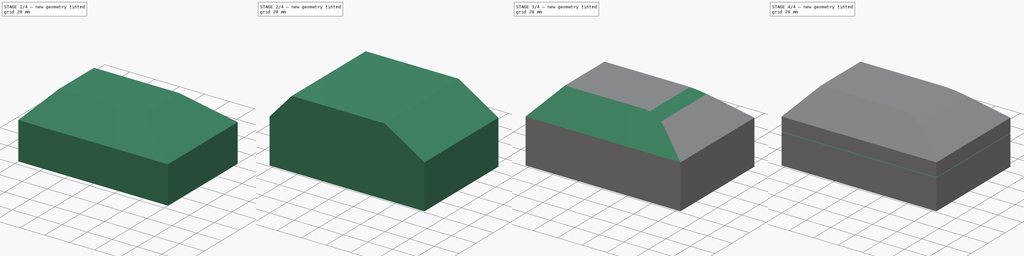
[diagram: build sequence overview — one tinted view per stage of 4, left to right]
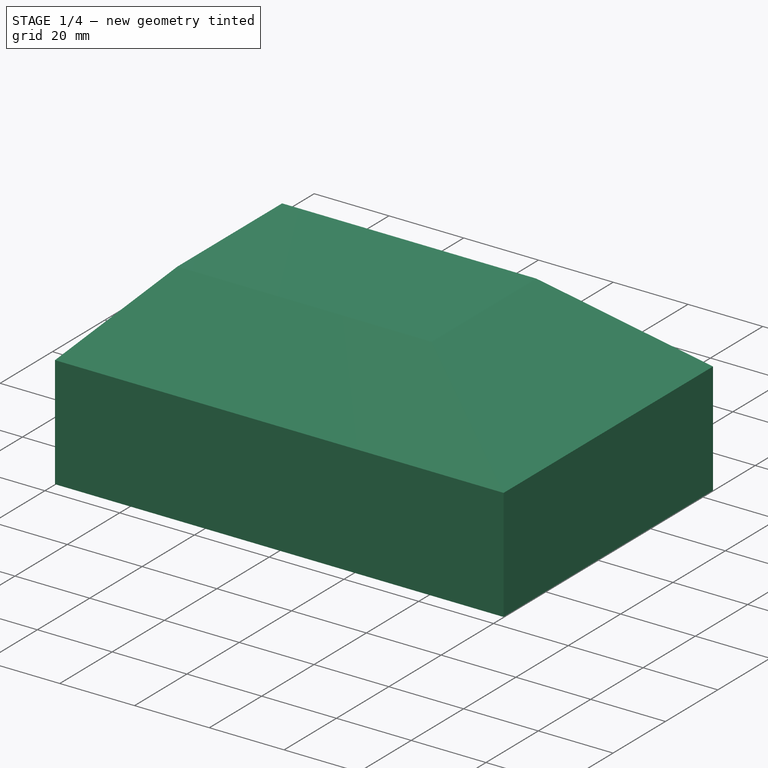
[diagram: stage 1 of 4 — iso view after this stage's code; geometry added in this stage tinted green]
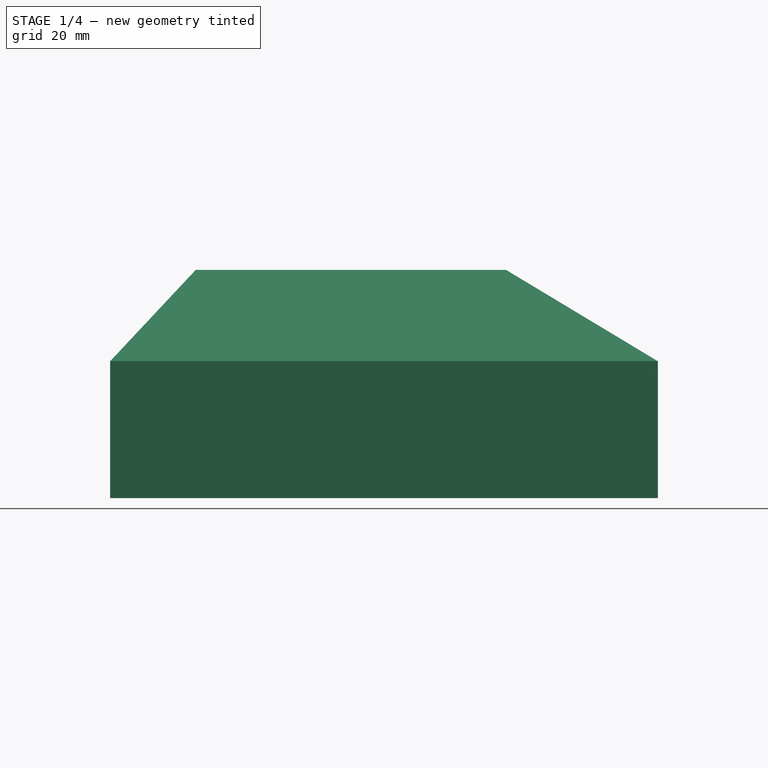
[diagram: stage 1 of 4 — front view after this stage's code; geometry added in this stage tinted green]
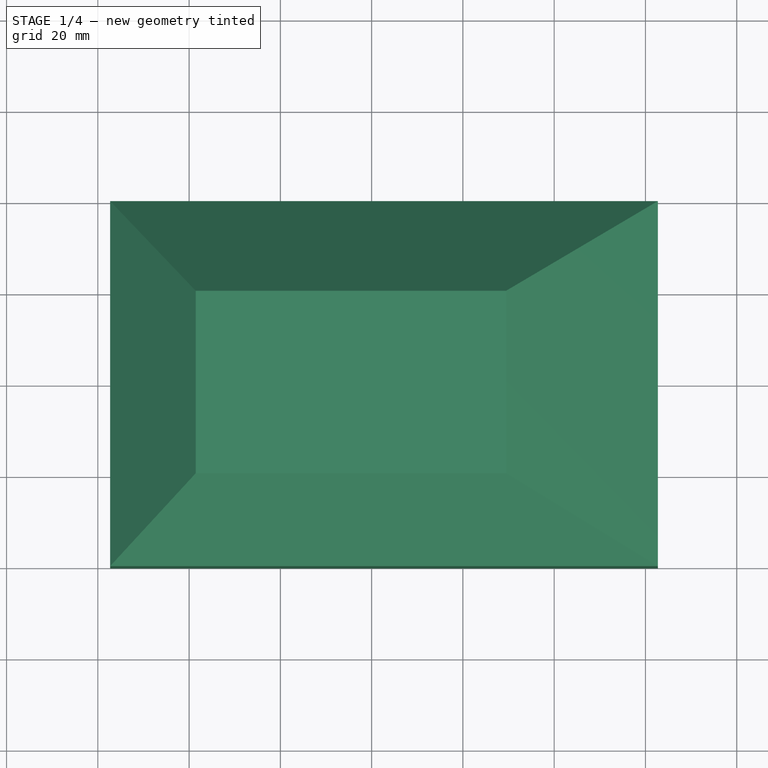
[diagram: stage 1 of 4 — top view after this stage's code; geometry added in this stage tinted green]
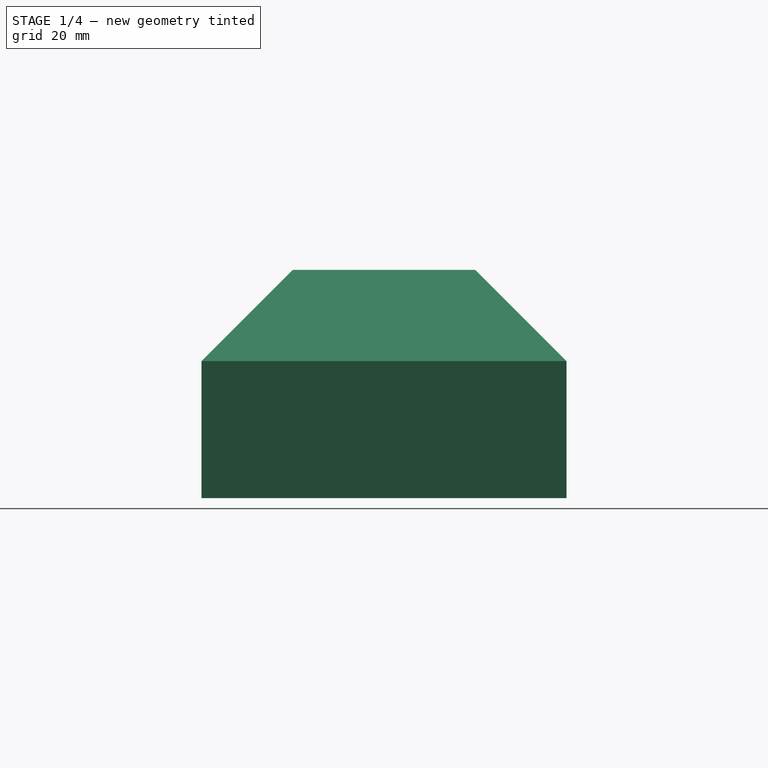
[diagram: stage 1 of 4 — right view after this stage's code; geometry added in this stage tinted green]
FCSTD DOCUMENT  (FreeCAD 0.16R6706 (Git))
Label: raspbox
License: All rights reserved
LicenseURL: http://en.wikipedia.org/wiki/All_rights_reserved
objects: Sketcher::SketchObject×4, PartDesign::Pad×2, PartDesign::Chamfer×2, PartDesign::Fillet×2, PartDesign::Pocket×2, App::MeasureDistance×2, Part::Cut×1
note: 17 computed .brp shape members not serialized (recipe doc carries the construction recipe); baked Part::Feature solids carry a one-line shape summary decoded from their .brp

FEATURE [Sketcher::SketchObject] Sketch001
  Placement = pos=(0,0,-25) rot=(1,0,0;1.5708rad)
  sketch-geometry (6):
    g0: LineSegment StartX=42.7081 StartY=3 StartZ=0 EndX=42.7081 EndY=33 EndZ=0
    g1: LineSegment StartX=42.7081 StartY=33 StartZ=0 EndX=9.46527 EndY=53 EndZ=0
    g2: LineSegment StartX=9.46527 StartY=53 StartZ=0 EndX=-58.5527 EndY=53 EndZ=0
    g3: LineSegment StartX=-58.5527 StartY=53 StartZ=0 EndX=-77.2919 EndY=33 EndZ=0
    g4: LineSegment StartX=-77.2919 StartY=33 StartZ=0 EndX=-77.2919 EndY=3 EndZ=0
    g5: LineSegment StartX=-77.2919 StartY=3 StartZ=0 EndX=42.7081 EndY=3 EndZ=0
  constraints (15):
    c: Vertical(g0)
    c: Coincident(g0,g1)
    c: Coincident(g1,g2)
    c: Horizontal(g2)
    c: Coincident(g2,g3)
    c: Coincident(g3,g4)
    c: Vertical(g4)
    c: Coincident(g4,g5)
    c: Horizontal(g5)
    c: Coincident(g5,g0)
    c: Distance(g5) = 120
    c: Equal(g4,g0)
    c: DistanceY(g0,g0) = 30
    c: DistanceY(g0,g1) = 50
    c: DistanceY(g-1,g0) = 3
FEATURE [PartDesign::Pad] Pad001
  Length = 80
  Length2 = 100
  Midplane = true
  Placement = pos=(0,0,-25) rot=(1,0,0;1.5708rad)
  Sketch = -> Sketch001
  Type = 0
FEATURE [PartDesign::Chamfer] Chamfer001
  Base = -> Pad001 [Edge9,Edge10]
  Placement = pos=(0,0,-25) rot=(1,0,0;1.5708rad)
  Size = 20
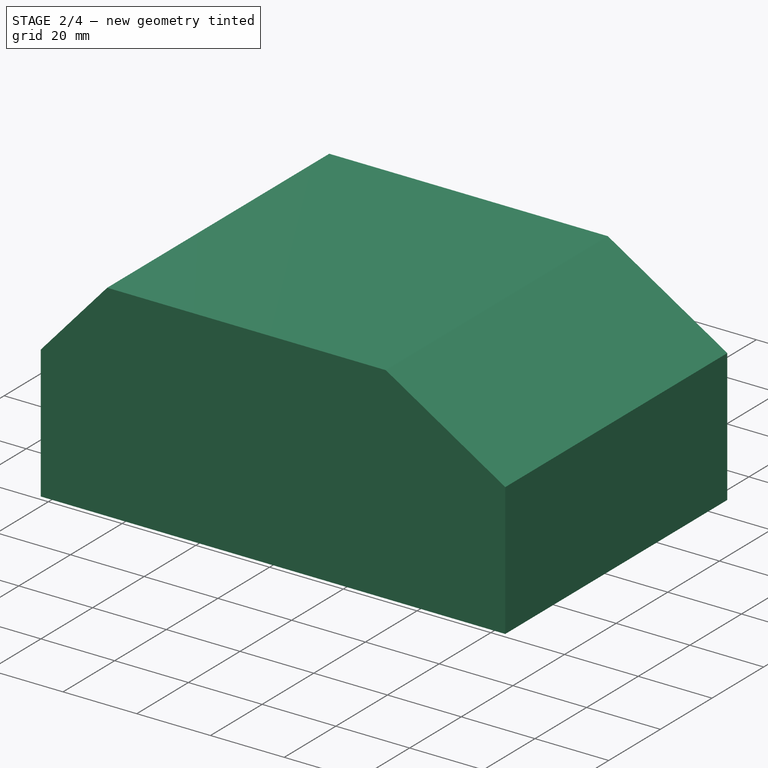
[diagram: stage 2 of 4 — iso view after this stage's code; geometry added in this stage tinted green]
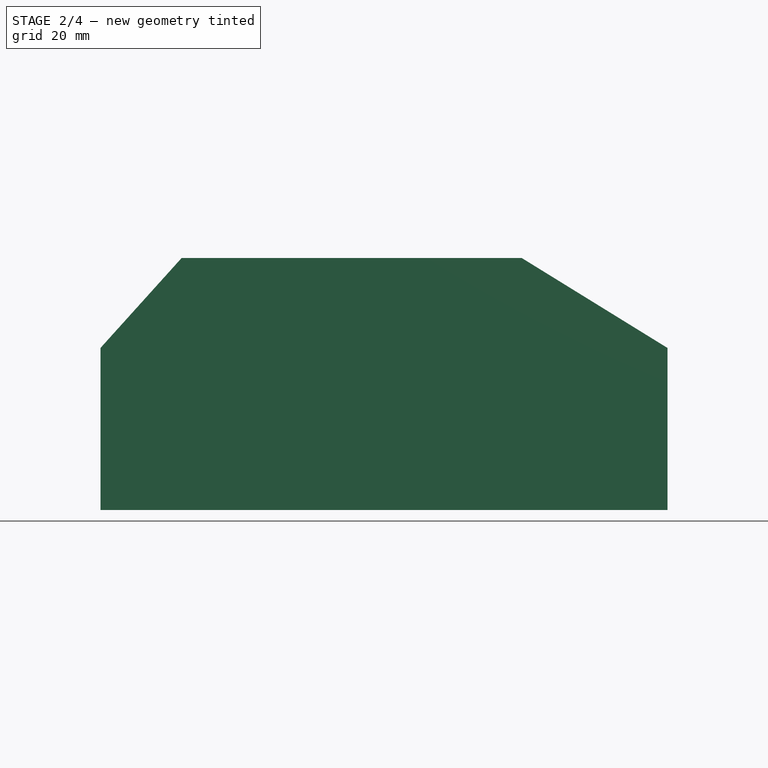
[diagram: stage 2 of 4 — front view after this stage's code; geometry added in this stage tinted green]
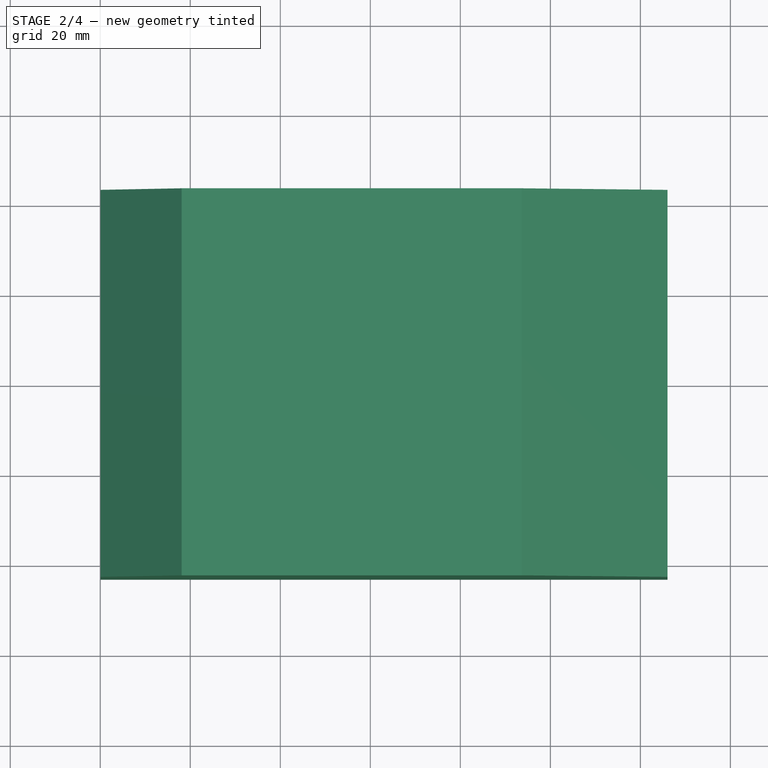
[diagram: stage 2 of 4 — top view after this stage's code; geometry added in this stage tinted green]
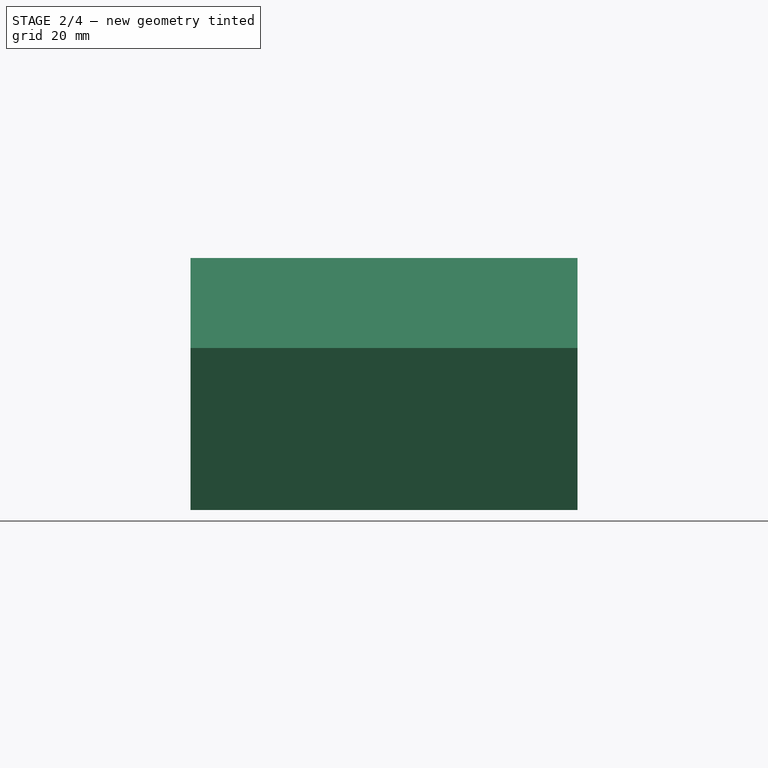
[diagram: stage 2 of 4 — right view after this stage's code; geometry added in this stage tinted green]
FEATURE [Sketcher::SketchObject] Sketch
  Placement = pos=(0,0,-25) rot=(1,0,0;1.5708rad)
  sketch-geometry (6):
    g0: LineSegment StartX=46.0411 StartY=0 StartZ=0 EndX=46.0411 EndY=36 EndZ=0
    g1: LineSegment StartX=46.0411 StartY=36 StartZ=0 EndX=13.6325 EndY=56 EndZ=0
    g2: LineSegment StartX=13.6325 StartY=56 StartZ=0 EndX=-61.9168 EndY=56 EndZ=0
    g3: LineSegment StartX=-61.9168 StartY=56 StartZ=0 EndX=-79.9589 EndY=36 EndZ=0
    g4: LineSegment StartX=-79.9589 StartY=36 StartZ=0 EndX=-79.9589 EndY=0 EndZ=0
    g5: LineSegment StartX=-79.9589 StartY=0 StartZ=0 EndX=46.0411 EndY=0 EndZ=0
  constraints (16):
    c: PointOnObject(g0,g-1)
    c: Vertical(g0)
    c: Coincident(g0,g1)
    c: Coincident(g1,g2)
    c: Horizontal(g2)
    c: Coincident(g2,g3)
    c: Coincident(g3,g4)
    c: PointOnObject(g4,g-1)
    c: Vertical(g4)
    c: Coincident(g4,g5)
    c: Horizontal(g5)
    c: Coincident(g5,g0)
    c: Distance(g5) = 126
    c: Equal(g4,g0)
    c: DistanceY(g0,g1) = 56
    c: DistanceY(g0,g0) = 36
FEATURE [PartDesign::Pad] Pad
  Length = 86
  Length2 = 100
  Midplane = true
  Placement = pos=(0,0,-25) rot=(1,0,0;1.5708rad)
  Sketch = -> Sketch
  Type = 0
FEATURE [PartDesign::Fillet] Fillet001
  Base = -> Chamfer001 [Edge1]
  Placement = pos=(0,0,-25) rot=(1,0,0;1.5708rad)
  Radius = 39
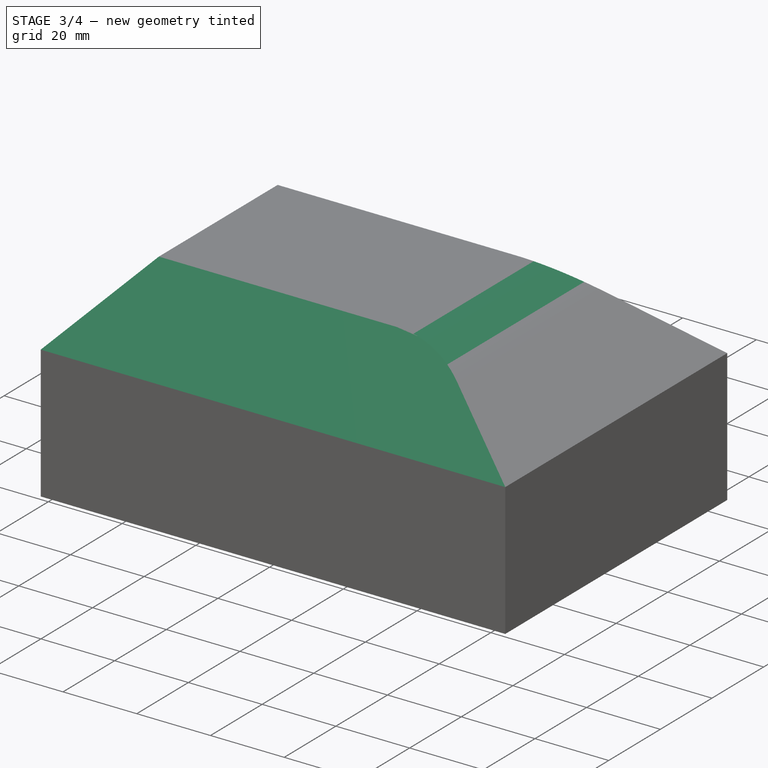
[diagram: stage 3 of 4 — iso view after this stage's code; geometry added in this stage tinted green]
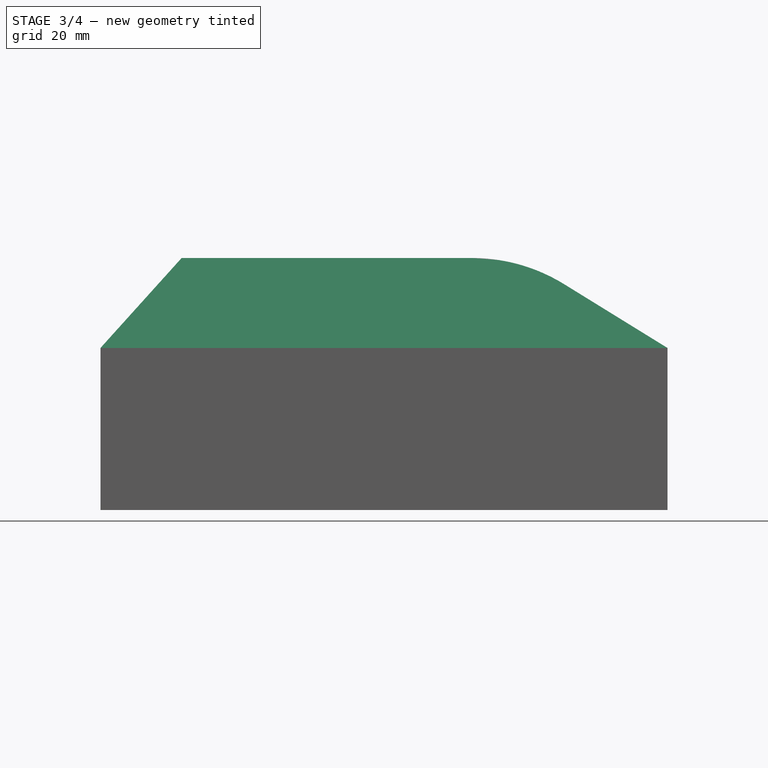
[diagram: stage 3 of 4 — front view after this stage's code; geometry added in this stage tinted green]
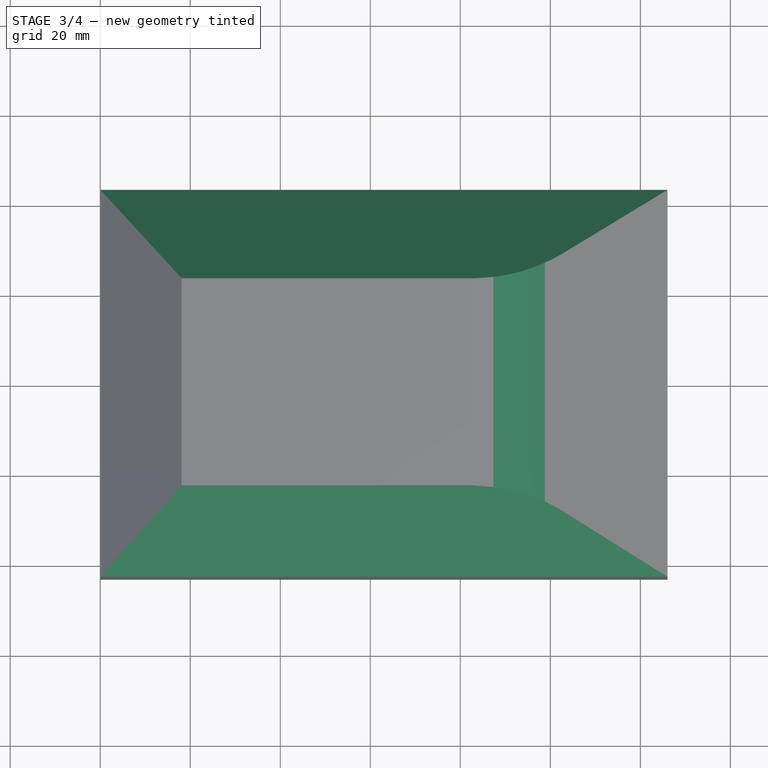
[diagram: stage 3 of 4 — top view after this stage's code; geometry added in this stage tinted green]
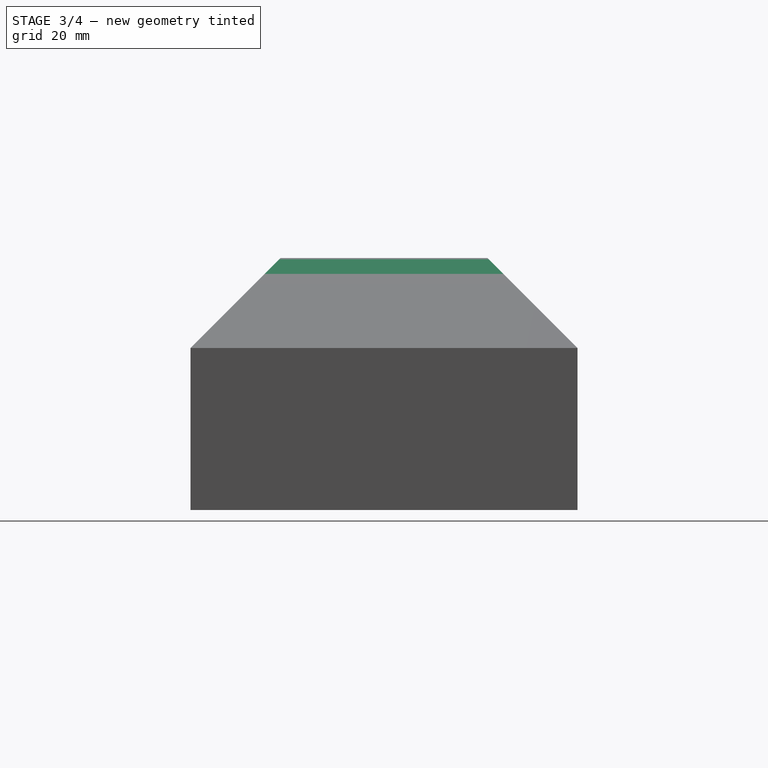
[diagram: stage 3 of 4 — right view after this stage's code; geometry added in this stage tinted green]
FEATURE [PartDesign::Chamfer] Chamfer
  Base = -> Pad [Edge9,Edge10]
  Placement = pos=(0,0,-25) rot=(1,0,0;1.5708rad)
  Size = 20
FEATURE [PartDesign::Fillet] Fillet
  Base = -> Chamfer [Edge1]
  Placement = pos=(0,0,-25) rot=(1,0,0;1.5708rad)
  Radius = 39
FEATURE [Part::Cut] Cut
  Base = -> Fillet
  Tool = -> Fillet001
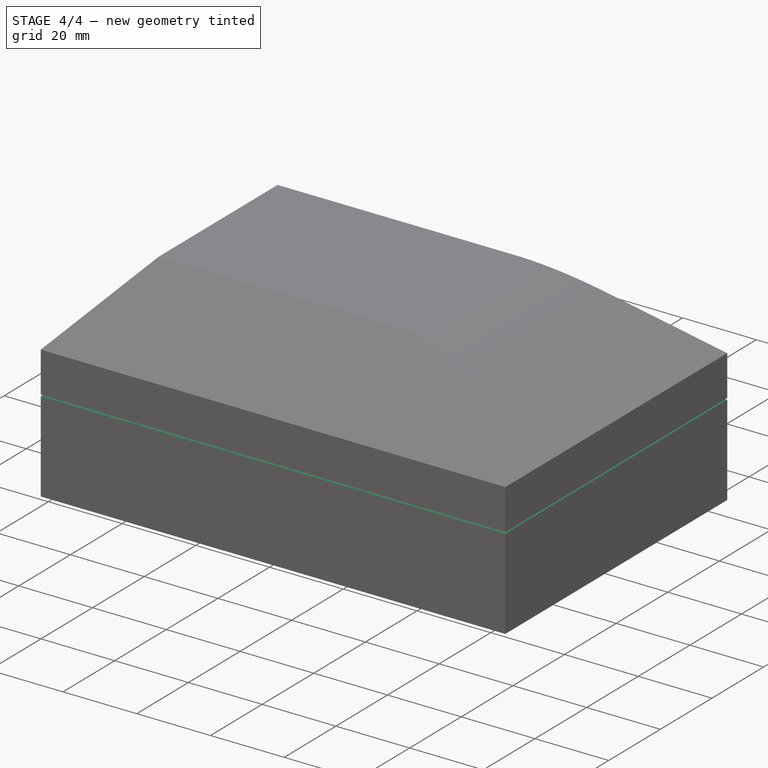
[diagram: stage 4 of 4 — iso view after this stage's code; geometry added in this stage tinted green]
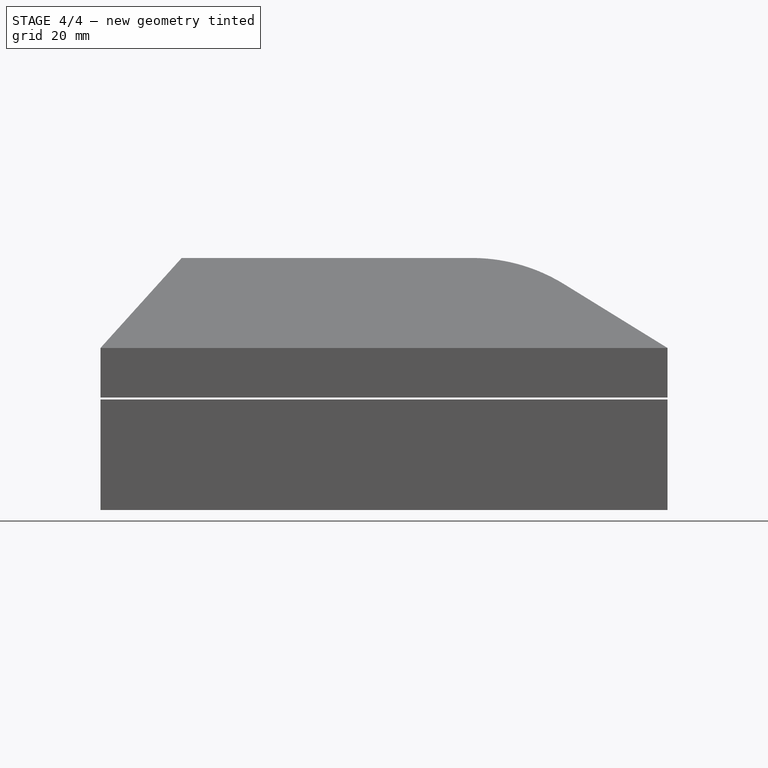
[diagram: stage 4 of 4 — front view after this stage's code; geometry added in this stage tinted green]
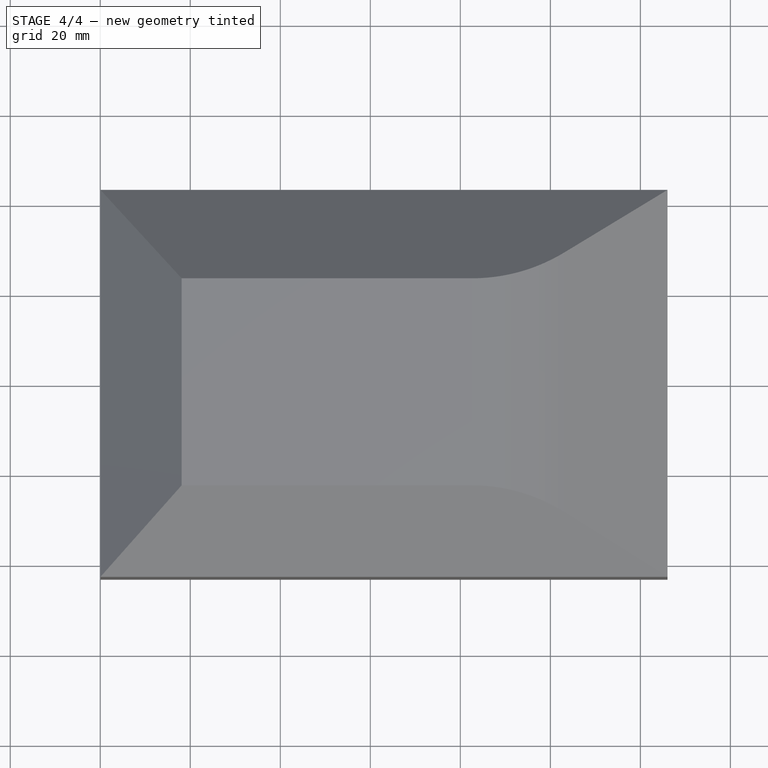
[diagram: stage 4 of 4 — top view after this stage's code; geometry added in this stage tinted green]
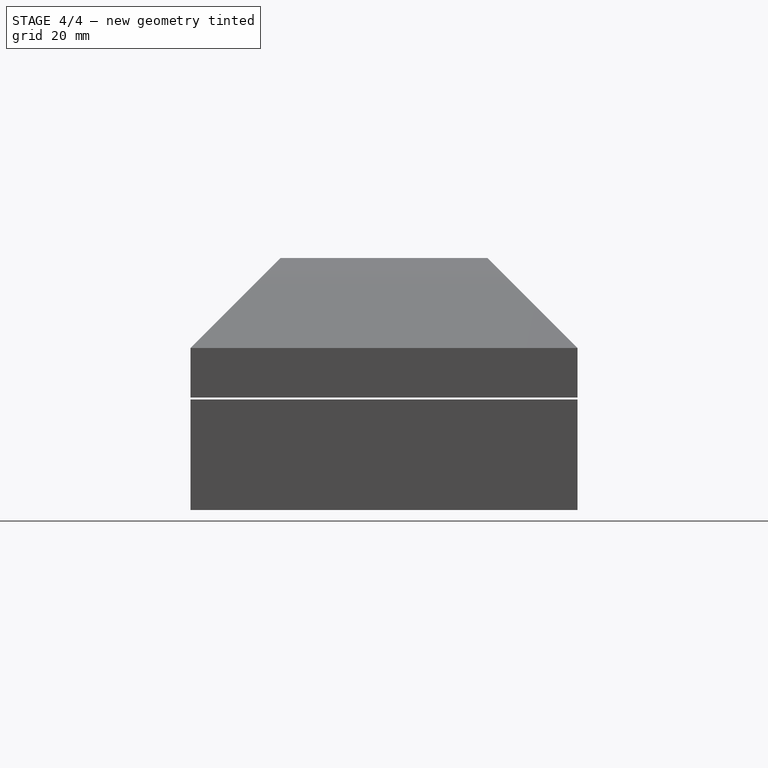
[diagram: stage 4 of 4 — right view after this stage's code; geometry added in this stage tinted green]
FEATURE [Sketcher::SketchObject] Sketch002
  Placement = pos=(0,-43,0) rot=(1,0,0;1.5708rad)
  Support = -> Cut [Face10]
  sketch-geometry (4):
    g0: LineSegment StartX=-96.4138 StartY=-0.440247 StartZ=0 EndX=68.2381 EndY=-0.440247 EndZ=0
    g1: LineSegment StartX=68.2381 StartY=-0.440247 StartZ=0 EndX=68.2381 EndY=44.2447 EndZ=0
    g2: LineSegment StartX=68.2381 StartY=44.2447 StartZ=0 EndX=-96.4138 EndY=44.2447 EndZ=0
    g3: LineSegment StartX=-96.4138 StartY=44.2447 StartZ=0 EndX=-96.4138 EndY=-0.440247 EndZ=0
  constraints (8):
    c: Coincident(g0,g1)
    c: Coincident(g1,g2)
    c: Coincident(g2,g3)
    c: Coincident(g3,g0)
    c: Horizontal(g0)
    c: Horizontal(g2)
    c: Vertical(g1)
    c: Vertical(g3)
FEATURE [PartDesign::Pocket] Pocket
  Length = 0
  Sketch = -> Sketch002
  Type = 3
  UpToFace = -> Cut [Face6]
FEATURE [Sketcher::SketchObject] Sketch003
  Placement = pos=(0,-43,0) rot=(1,0,0;1.5708rad)
  Support = -> Cut [Face10]
  sketch-geometry (4):
    g0: LineSegment StartX=-93.7723 StartY=0 StartZ=0 EndX=79.6844 EndY=0 EndZ=0
    g1: LineSegment StartX=79.6844 StartY=0 StartZ=0 EndX=79.6844 EndY=-38.7416 EndZ=0
    g2: LineSegment StartX=79.6844 StartY=-38.7416 StartZ=0 EndX=-93.7723 EndY=-38.7416 EndZ=0
    g3: LineSegment StartX=-93.7723 StartY=-38.7416 StartZ=0 EndX=-93.7723 EndY=0 EndZ=0
  constraints (9):
    c: Coincident(g0,g1)
    c: Coincident(g1,g2)
    c: Coincident(g2,g3)
    c: Coincident(g3,g0)
    c: Horizontal(g0)
    c: Horizontal(g2)
    c: Vertical(g1)
    c: Vertical(g3)
    c: PointOnObject(g0,g-1)
FEATURE [PartDesign::Pocket] Pocket001
  Length = 0
  Sketch = -> Sketch003
  Type = 3
  UpToFace = -> Cut [Face6]
FEATURE [App::MeasureDistance] Distance  label="Distance: 86 mm"
  Distance = 86
  P1 = (46.0411,-43,-25)
  P2 = (46.0411,43,-25)
FEATURE [App::MeasureDistance] Distance001  label="Distance: 126 mm"
  Distance = 126
  P1 = (46.0411,-43,-25)
  P2 = (-79.9589,-43,-25)
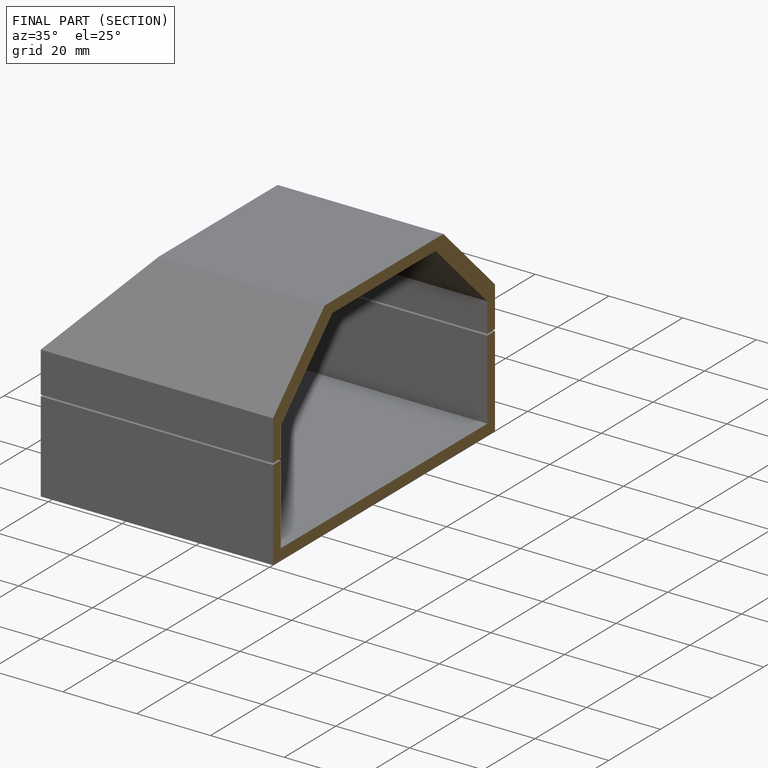
[diagram: finished part — half-section view (interior)]
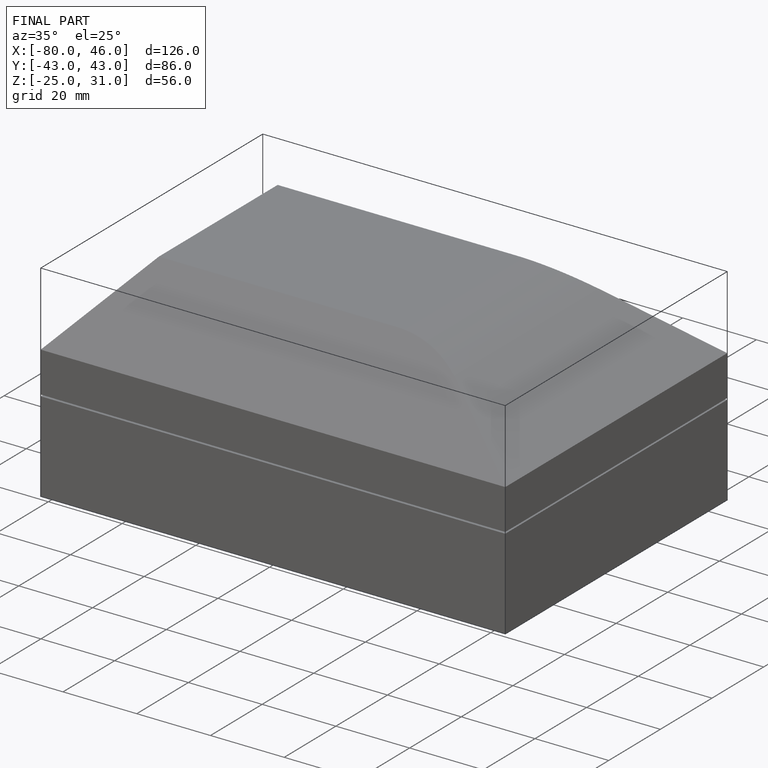
[diagram: finished part — iso view with bounding-box wireframe]
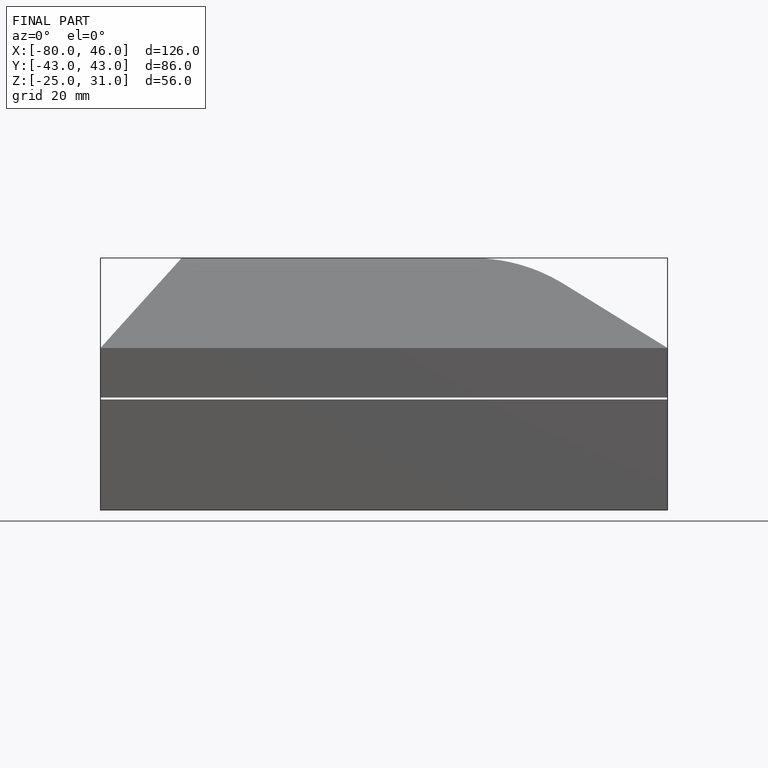
[diagram: finished part — front view with bounding-box wireframe]
